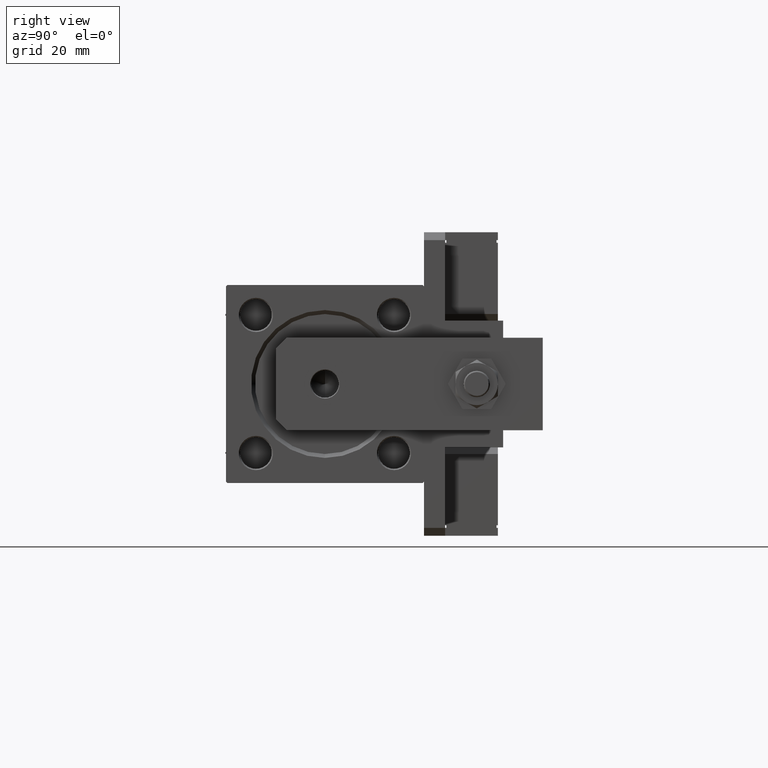
[diagram: clean part render]
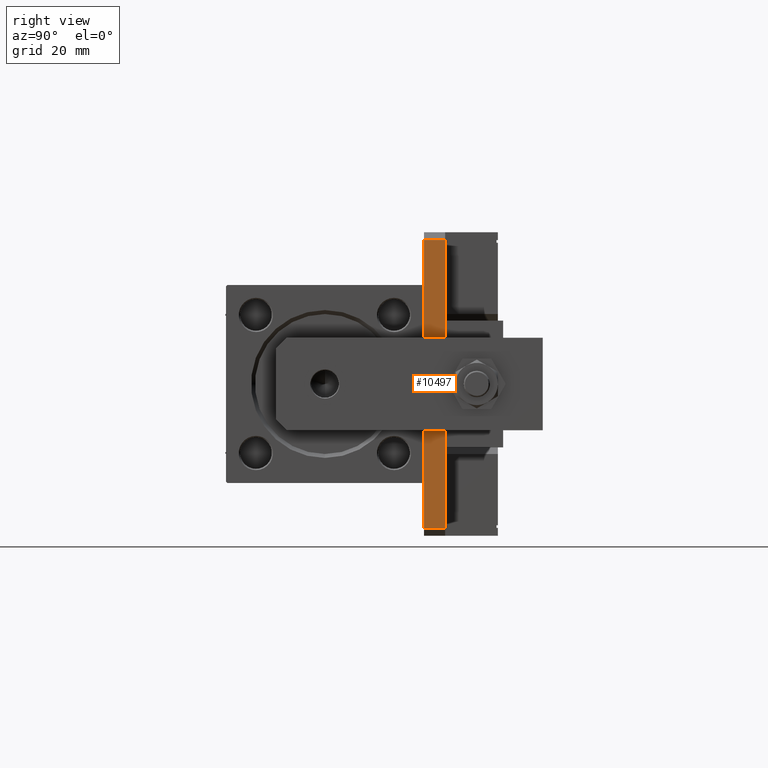
[diagram: same view with one face highlighted and labeled with its STEP entity id]
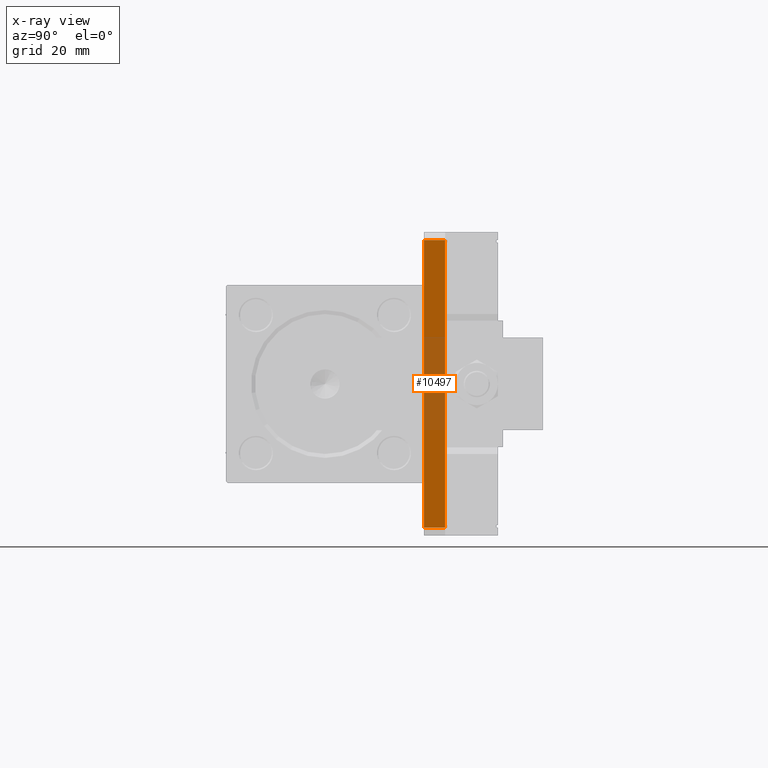
[diagram: x-ray of the same camera — body ghosted, the highlighted face saturated]
A machine part, right view. The second image highlights one B-rep face of the part: STEP entity #10497.
The next image is the same camera in x-ray: the body ghosted, the highlighted face saturated — about 32% of this face is hidden behind the body in this view.
In plain terms, the highlighted planar face has unit normal (-1, 0, 0).
Its self-contained STEP definition (entity closure, byte-faithful):
#58 = ORIENTED_EDGE ( 'NONE', *, *, #7561, .F. ) ;
#2503 = VECTOR ( 'NONE', #50023, 1000.000000000000000 ) ;
#5520 = VERTEX_POINT ( 'NONE', #41590 ) ;
#7561 = EDGE_CURVE ( 'NONE', #35103, #31422, #9703, .T. ) ;
#7848 = DIRECTION ( 'NONE',  ( 1.000000000000000000, 0.000000000000000000, 0.000000000000000000 ) ) ;
#9669 = VECTOR ( 'NONE', #50025, 1000.000000000000000 ) ;
#9703 = LINE ( 'NONE', #17648, #44830 ) ;
#10055 = EDGE_CURVE ( 'NONE', #35103, #5520, #54287, .T. ) ;
#10497 = ADVANCED_FACE ( 'NONE', ( #45590 ), #31760, .F. ) ;
#11317 = ORIENTED_EDGE ( 'NONE', *, *, #52835, .T. ) ;
#13685 = CARTESIAN_POINT ( 'NONE',  ( 111.9999999999999858, 0.000000000000000000, 8.000000000000000000 ) ) ;
#15335 = CARTESIAN_POINT ( 'NONE',  ( 0.000000000000000000, 0.000000000000000000, 8.000000000000000000 ) ) ;
#15534 = LINE ( 'NONE', #28557, #2503 ) ;
#16954 = AXIS2_PLACEMENT_3D ( 'NONE', #15335, #19027, #28355 ) ;
#17648 = CARTESIAN_POINT ( 'NONE',  ( 0.000000000000000000, 0.000000000000000000, 8.000000000000000000 ) ) ;
#18960 = VERTEX_POINT ( 'NONE', #33163 ) ;
#19027 = DIRECTION ( 'NONE',  ( 0.000000000000000000, 1.000000000000000000, 0.000000000000000000 ) ) ;
#21003 = VECTOR ( 'NONE', #7848, 1000.000000000000000 ) ;
#26960 = DIRECTION ( 'NONE',  ( 1.000000000000000000, 0.000000000000000000, 0.000000000000000000 ) ) ;
#28355 = DIRECTION ( 'NONE',  ( 0.000000000000000000, -0.000000000000000000, 1.000000000000000000 ) ) ;
#28557 = CARTESIAN_POINT ( 'NONE',  ( 111.9999999999999858, 0.000000000000000000, 8.000000000000000000 ) ) ;
#28908 = ORIENTED_EDGE ( 'NONE', *, *, #10055, .T. ) ;
#30883 = EDGE_CURVE ( 'NONE', #5520, #18960, #36980, .T. ) ;
#31422 = VERTEX_POINT ( 'NONE', #13685 ) ;
#31760 = PLANE ( 'NONE',  #16954 ) ;
#32787 = CARTESIAN_POINT ( 'NONE',  ( 2.999999999999975131, 0.000000000000000000, 8.000000000000000000 ) ) ;
#33163 = CARTESIAN_POINT ( 'NONE',  ( 111.9999999999999858, 0.000000000000000000, 0.000000000000000000 ) ) ;
#33930 = CARTESIAN_POINT ( 'NONE',  ( 2.999999999999975131, 0.000000000000000000, 8.000000000000000000 ) ) ;
#35103 = VERTEX_POINT ( 'NONE', #33930 ) ;
#36980 = LINE ( 'NONE', #37258, #21003 ) ;
#37258 = CARTESIAN_POINT ( 'NONE',  ( 0.000000000000000000, 0.000000000000000000, 0.000000000000000000 ) ) ;
#37655 = ORIENTED_EDGE ( 'NONE', *, *, #30883, .T. ) ;
#41590 = CARTESIAN_POINT ( 'NONE',  ( 2.999999999999975131, 0.000000000000000000, 0.000000000000000000 ) ) ;
#44830 = VECTOR ( 'NONE', #26960, 1000.000000000000000 ) ;
#45590 = FACE_OUTER_BOUND ( 'NONE', #50955, .T. ) ;
#50023 = DIRECTION ( 'NONE',  ( 0.000000000000000000, 0.000000000000000000, 1.000000000000000000 ) ) ;
#50025 = DIRECTION ( 'NONE',  ( 0.000000000000000000, 0.000000000000000000, -1.000000000000000000 ) ) ;
#50955 = EDGE_LOOP ( 'NONE', ( #37655, #11317, #58, #28908 ) ) ;
#52835 = EDGE_CURVE ( 'NONE', #18960, #31422, #15534, .T. ) ;
#54287 = LINE ( 'NONE', #32787, #9669 ) ;